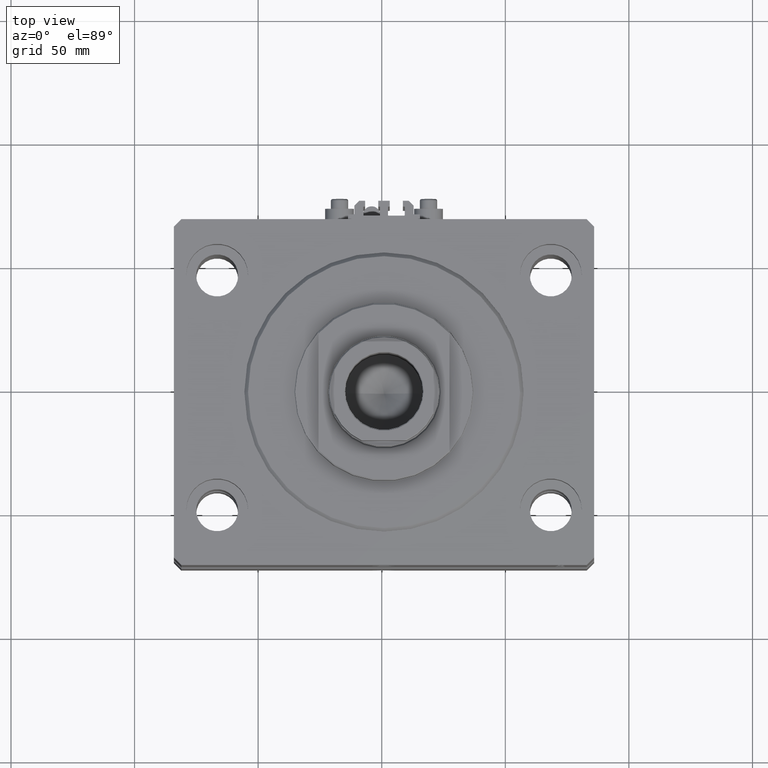
[diagram: clean part render]
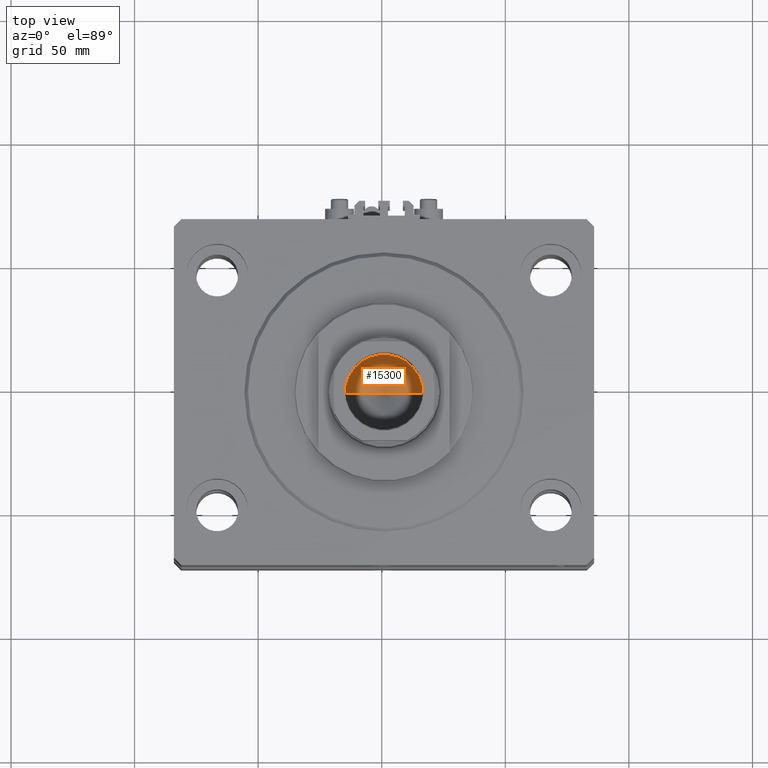
[diagram: same view with one face highlighted and labeled with its STEP entity id]
A machine part, top view. The second image highlights one B-rep face of the part: STEP entity #15300.
In plain terms, the highlighted conical surface has half-angle 59 deg.
Its self-contained STEP definition (entity closure, byte-faithful):
#308 = VERTEX_POINT ( 'NONE', #26752 ) ;
#722 = CONICAL_SURFACE ( 'NONE', #30906, 15.74999999999998934, 1.029744258676653645 ) ;
#4617 = VERTEX_POINT ( 'NONE', #46695 ) ;
#6294 = CARTESIAN_POINT ( 'NONE',  ( -15.74999999999998934, 1.928818708657080161E-15, 71.10000000000002274 ) ) ;
#7050 = LINE ( 'NONE', #37182, #37565 ) ;
#7830 = DIRECTION ( 'NONE',  ( 1.000000000000000000, 0.000000000000000000, 0.000000000000000000 ) ) ;
#9525 = VERTEX_POINT ( 'NONE', #25766 ) ;
#10013 = LINE ( 'NONE', #6294, #25177 ) ;
#13674 = DIRECTION ( 'NONE',  ( -0.000000000000000000, -0.000000000000000000, 1.000000000000000000 ) ) ;
#15300 = ADVANCED_FACE ( 'NONE', ( #19029 ), #722, .F. ) ;
#17683 = EDGE_CURVE ( 'NONE', #9525, #4617, #19986, .T. ) ;
#19029 = FACE_OUTER_BOUND ( 'NONE', #27393, .T. ) ;
#19986 = CIRCLE ( 'NONE', #24761, 15.74999999999998934 ) ;
#22777 = DIRECTION ( 'NONE',  ( -0.000000000000000000, -0.000000000000000000, 1.000000000000000000 ) ) ;
#24413 = CARTESIAN_POINT ( 'NONE',  ( 0.000000000000000000, 0.000000000000000000, 71.10000000000002274 ) ) ;
#24761 = AXIS2_PLACEMENT_3D ( 'NONE', #24413, #13674, #28132 ) ;
#25177 = VECTOR ( 'NONE', #33405, 1000.000000000000000 ) ;
#25766 = CARTESIAN_POINT ( 'NONE',  ( 15.74999999999998934, 0.000000000000000000, 71.10000000000002274 ) ) ;
#26752 = CARTESIAN_POINT ( 'NONE',  ( -1.480675244360640996E-14, 0.000000000000000000, 61.63644525031594412 ) ) ;
#27393 = EDGE_LOOP ( 'NONE', ( #40783, #41036, #35390 ) ) ;
#28132 = DIRECTION ( 'NONE',  ( 1.000000000000000000, 0.000000000000000000, 0.000000000000000000 ) ) ;
#30237 = CARTESIAN_POINT ( 'NONE',  ( 0.000000000000000000, 0.000000000000000000, 71.10000000000002274 ) ) ;
#30906 = AXIS2_PLACEMENT_3D ( 'NONE', #30237, #22777, #7830 ) ;
#32916 = EDGE_CURVE ( 'NONE', #308, #4617, #10013, .T. ) ;
#33405 = DIRECTION ( 'NONE',  ( -0.8571673007021118895, 1.049727191138618079E-16, 0.5150380749100549327 ) ) ;
#35390 = ORIENTED_EDGE ( 'NONE', *, *, #17683, .T. ) ;
#37182 = CARTESIAN_POINT ( 'NONE',  ( 15.74999999999998934, 0.000000000000000000, 71.10000000000002274 ) ) ;
#37565 = VECTOR ( 'NONE', #48384, 1000.000000000000000 ) ;
#40783 = ORIENTED_EDGE ( 'NONE', *, *, #32916, .F. ) ;
#41036 = ORIENTED_EDGE ( 'NONE', *, *, #44698, .T. ) ;
#44698 = EDGE_CURVE ( 'NONE', #308, #9525, #7050, .T. ) ;
#46695 = CARTESIAN_POINT ( 'NONE',  ( -15.74999999999998934, 1.928818708657080161E-15, 71.10000000000002274 ) ) ;
#48384 = DIRECTION ( 'NONE',  ( 0.8571673007021118895, 0.000000000000000000, 0.5150380749100549327 ) ) ;